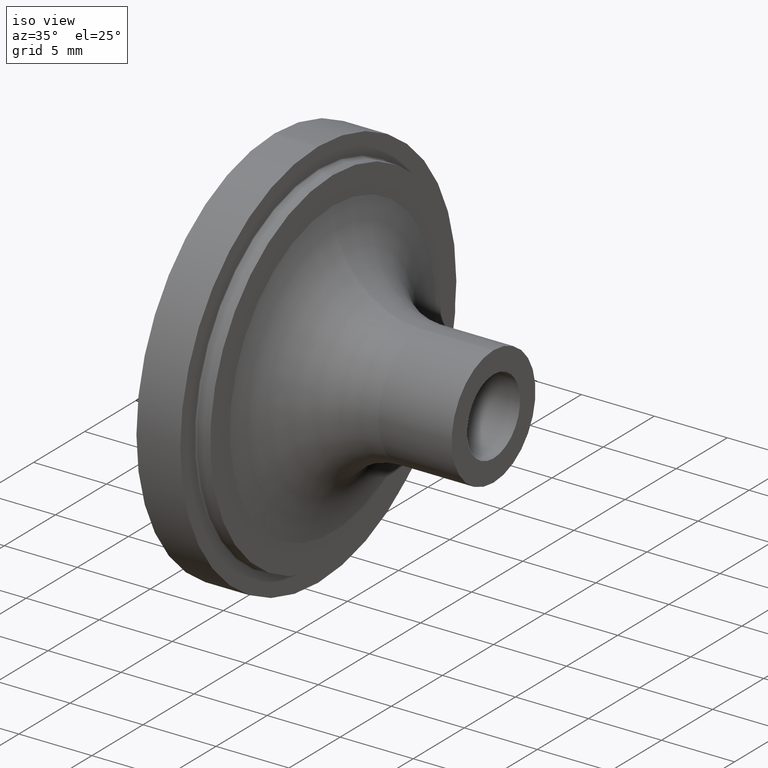
[diagram: clean part render]
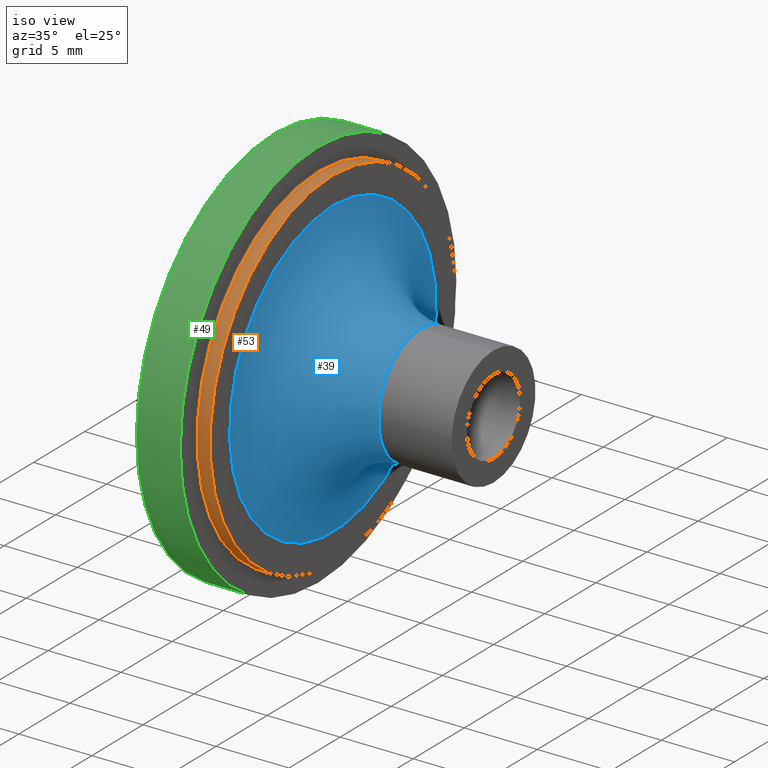
[diagram: same view with three faces highlighted in distinct colors, each labeled with its STEP entity id]
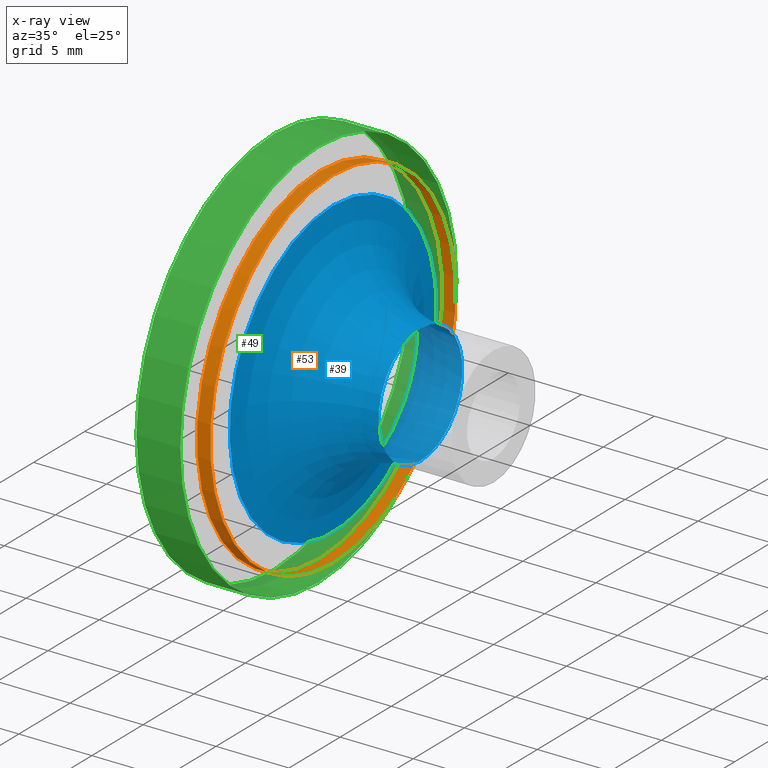
[diagram: x-ray of the same camera — body ghosted, the three highlighted faces saturated]
A machine part, iso view with three faces highlighted in distinct colors.
The next image is the same camera in x-ray (body ghosted, the three faces saturated) — at least one of them is partly hidden behind the body in this view.
Their STEP definitions:

[orange] entity #53 — the highlighted cylindrical surface (bore or boss wall) has radius 12 mm, axis along (1, -0, -0).
#53 = ADVANCED_FACE( '', ( #112, #113 ), #114, .T. );
#112 = FACE_OUTER_BOUND( '', #171, .T. );
#113 = FACE_OUTER_BOUND( '', #172, .T. );
#114 = CYLINDRICAL_SURFACE( '', #173, 12.0000000000000 );
#171 = EDGE_LOOP( '', ( #240 ) );
#172 = EDGE_LOOP( '', ( #241 ) );
#173 = AXIS2_PLACEMENT_3D( '', #242, #243, #244 );
#240 = ORIENTED_EDGE( '', *, *, #290, .T. );
#241 = ORIENTED_EDGE( '', *, *, #276, .T. );
#242 = CARTESIAN_POINT( '', ( -15.0000000000000, 0.000000000000000, 0.000000000000000 ) );
#243 = DIRECTION( '', ( 1.00000000000000, -0.000000000000000, -0.000000000000000 ) );
#244 = DIRECTION( '', ( 0.000000000000000, 0.000000000000000, 1.00000000000000 ) );
#276 = EDGE_CURVE( '', #306, #306, #307, .T. );
#290 = EDGE_CURVE( '', #328, #328, #329, .F. );
#306 = VERTEX_POINT( '', #345 );
#307 = CIRCLE( '', #346, 12.0000000000000 );
#328 = VERTEX_POINT( '', #367 );
#329 = CIRCLE( '', #368, 12.0000000000000 );
#345 = CARTESIAN_POINT( '', ( -11.0000000000000, 0.000000000000000, 12.0000000000000 ) );
#346 = AXIS2_PLACEMENT_3D( '', #385, #386, #387 );
#367 = CARTESIAN_POINT( '', ( -11.9000000000000, 0.000000000000000, 12.0000000000000 ) );
#368 = AXIS2_PLACEMENT_3D( '', #409, #410, #411 );
#385 = CARTESIAN_POINT( '', ( -11.0000000000000, 0.000000000000000, 0.000000000000000 ) );
#386 = DIRECTION( '', ( -1.00000000000000, 0.000000000000000, 0.000000000000000 ) );
#387 = DIRECTION( '', ( 0.000000000000000, 0.000000000000000, 1.00000000000000 ) );
#409 = CARTESIAN_POINT( '', ( -11.9000000000000, 0.000000000000000, 0.000000000000000 ) );
#410 = DIRECTION( '', ( -1.00000000000000, 0.000000000000000, 0.000000000000000 ) );
#411 = DIRECTION( '', ( 0.000000000000000, 0.000000000000000, 1.00000000000000 ) );

[blue] entity #39 — the highlighted toroidal blend (fillet) surface has major radius 10.1 mm and minor (blend) radius 6 mm.
#39 = ADVANCED_FACE( '', ( #84, #85 ), #86, .F. );
#84 = FACE_OUTER_BOUND( '', #143, .T. );
#85 = FACE_OUTER_BOUND( '', #144, .T. );
#86 = TOROIDAL_SURFACE( '', #145, 10.1000000000000, 6.00000000000000 );
#143 = EDGE_LOOP( '', ( #198 ) );
#144 = EDGE_LOOP( '', ( #199 ) );
#145 = AXIS2_PLACEMENT_3D( '', #200, #201, #202 );
#198 = ORIENTED_EDGE( '', *, *, #273, .F. );
#199 = ORIENTED_EDGE( '', *, *, #274, .T. );
#200 = CARTESIAN_POINT( '', ( -5.00000000000000, 0.000000000000000, 0.000000000000000 ) );
#201 = DIRECTION( '', ( -1.00000000000000, 0.000000000000000, 0.000000000000000 ) );
#202 = DIRECTION( '', ( 0.000000000000000, 0.000000000000000, 1.00000000000000 ) );
#273 = EDGE_CURVE( '', #301, #301, #302, .T. );
#274 = EDGE_CURVE( '', #303, #303, #304, .T. );
#301 = VERTEX_POINT( '', #340 );
#302 = CIRCLE( '', #341, 10.1000000000000 );
#303 = VERTEX_POINT( '', #342 );
#304 = CIRCLE( '', #343, 4.10000000000000 );
#340 = CARTESIAN_POINT( '', ( -11.0000000000000, 0.000000000000000, 10.1000000000000 ) );
#341 = AXIS2_PLACEMENT_3D( '', #379, #380, #381 );
#342 = CARTESIAN_POINT( '', ( -5.00000000000000, 0.000000000000000, 4.10000000000000 ) );
#343 = AXIS2_PLACEMENT_3D( '', #382, #383, #384 );
#379 = CARTESIAN_POINT( '', ( -11.0000000000000, 0.000000000000000, 0.000000000000000 ) );
#380 = DIRECTION( '', ( -1.00000000000000, 0.000000000000000, 0.000000000000000 ) );
#381 = DIRECTION( '', ( 0.000000000000000, 0.000000000000000, 1.00000000000000 ) );
#382 = CARTESIAN_POINT( '', ( -5.00000000000000, 0.000000000000000, 0.000000000000000 ) );
#383 = DIRECTION( '', ( -1.00000000000000, 0.000000000000000, 0.000000000000000 ) );
#384 = DIRECTION( '', ( 0.000000000000000, 0.000000000000000, 1.00000000000000 ) );

[green] entity #49 — the highlighted cylindrical surface (bore or boss wall) has radius 13.5 mm, axis along (1, -0, -0).
#49 = ADVANCED_FACE( '', ( #104, #105 ), #106, .T. );
#104 = FACE_OUTER_BOUND( '', #163, .T. );
#105 = FACE_OUTER_BOUND( '', #164, .T. );
#106 = CYLINDRICAL_SURFACE( '', #165, 13.5000000000000 );
#163 = EDGE_LOOP( '', ( #228 ) );
#164 = EDGE_LOOP( '', ( #229 ) );
#165 = AXIS2_PLACEMENT_3D( '', #230, #231, #232 );
#228 = ORIENTED_EDGE( '', *, *, #286, .T. );
#229 = ORIENTED_EDGE( '', *, *, #278, .F. );
#230 = CARTESIAN_POINT( '', ( -60.0000000000000, 0.000000000000000, 0.000000000000000 ) );
#231 = DIRECTION( '', ( 1.00000000000000, -0.000000000000000, -0.000000000000000 ) );
#232 = DIRECTION( '', ( 0.000000000000000, 0.000000000000000, 1.00000000000000 ) );
#278 = EDGE_CURVE( '', #309, #309, #310, .T. );
#286 = EDGE_CURVE( '', #322, #322, #323, .T. );
#309 = VERTEX_POINT( '', #348 );
#310 = CIRCLE( '', #349, 13.5000000000000 );
#322 = VERTEX_POINT( '', #361 );
#323 = CIRCLE( '', #362, 13.5000000000000 );
#348 = CARTESIAN_POINT( '', ( -15.0000000000000, 0.000000000000000, 13.5000000000000 ) );
#349 = AXIS2_PLACEMENT_3D( '', #388, #389, #390 );
#361 = CARTESIAN_POINT( '', ( -12.0000000000000, 0.000000000000000, 13.5000000000000 ) );
#362 = AXIS2_PLACEMENT_3D( '', #403, #404, #405 );
#388 = CARTESIAN_POINT( '', ( -15.0000000000000, 0.000000000000000, 0.000000000000000 ) );
#389 = DIRECTION( '', ( -1.00000000000000, 0.000000000000000, 0.000000000000000 ) );
#390 = DIRECTION( '', ( 0.000000000000000, 0.000000000000000, 1.00000000000000 ) );
#403 = CARTESIAN_POINT( '', ( -12.0000000000000, 0.000000000000000, 0.000000000000000 ) );
#404 = DIRECTION( '', ( -1.00000000000000, 0.000000000000000, 0.000000000000000 ) );
#405 = DIRECTION( '', ( 0.000000000000000, 0.000000000000000, 1.00000000000000 ) );